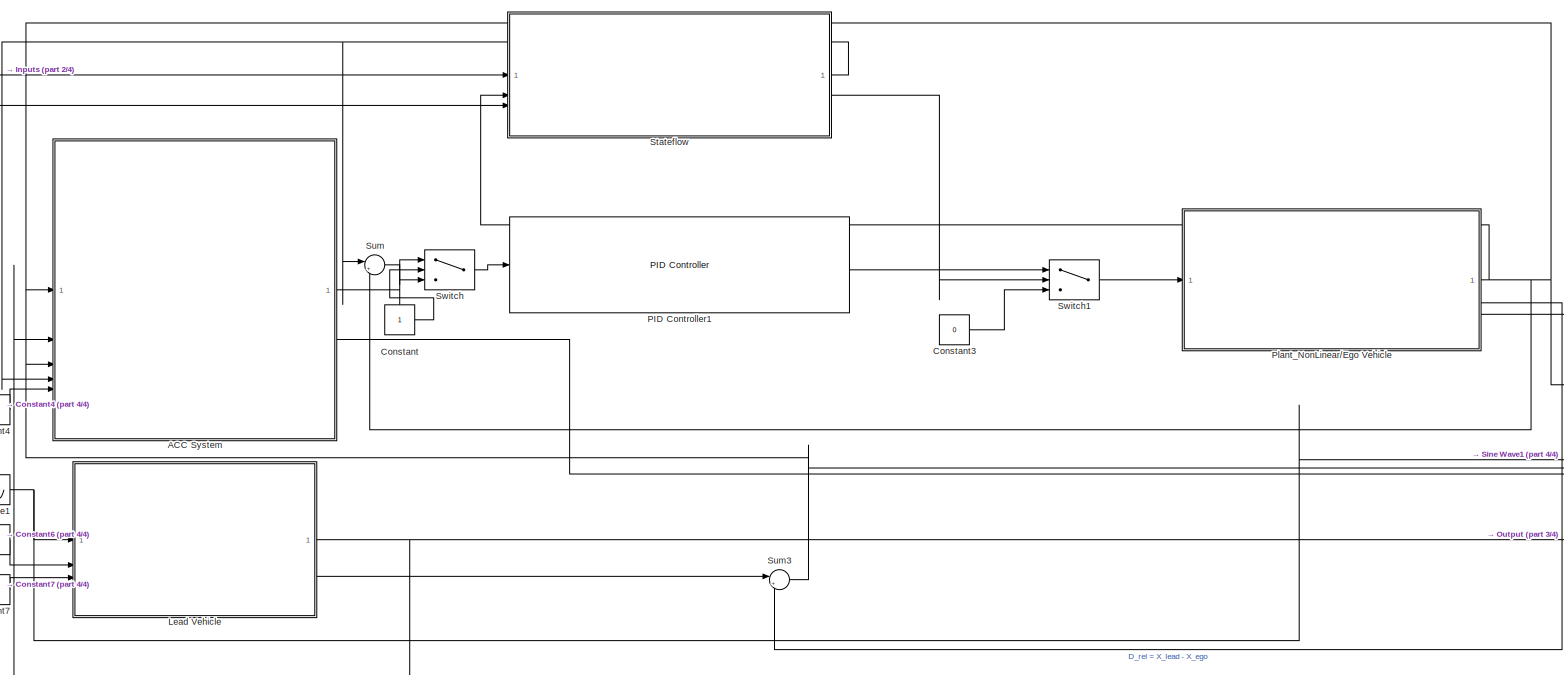
[diagram: root canvas - part 1/4, most of the canvas]
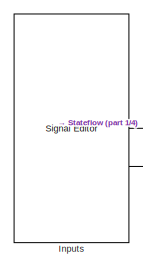
[diagram: root canvas - part 2/4, middle left region]
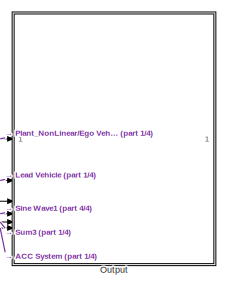
[diagram: root canvas - part 3/4, middle right region]
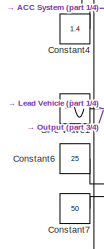
[diagram: root canvas - part 4/4, bottom left region]
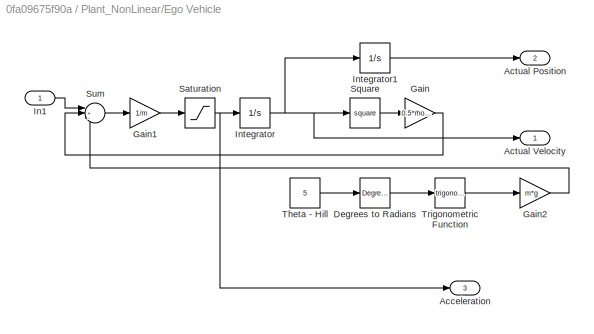
MODEL slx_0fa09675f90a
KIND model
CONFIG AbsTol = auto
CONFIG EnableMultiTasking = off
CONFIG FixedStep = 0.01
CONFIG MaxStep = auto
CONFIG MinStep = auto
CONFIG RelTol = 1e-3
CONFIG SampleTimeConstraint = Unconstrained
CONFIG SolverName = VariableStepAuto
CONFIG StartTime = 0.0
CONFIG StopTime = 80
WORKSPACE source: mxarray member
WORKSPACE A: Simulink.Parameter (value not decoded)
WORKSPACE Cd: Simulink.Parameter (value not decoded)
WORKSPACE b: Simulink.Parameter (value not decoded)
WORKSPACE g: Simulink.Parameter (value not decoded)
WORKSPACE m: Simulink.Parameter (value not decoded)
WORKSPACE rho: Simulink.Parameter (value not decoded)
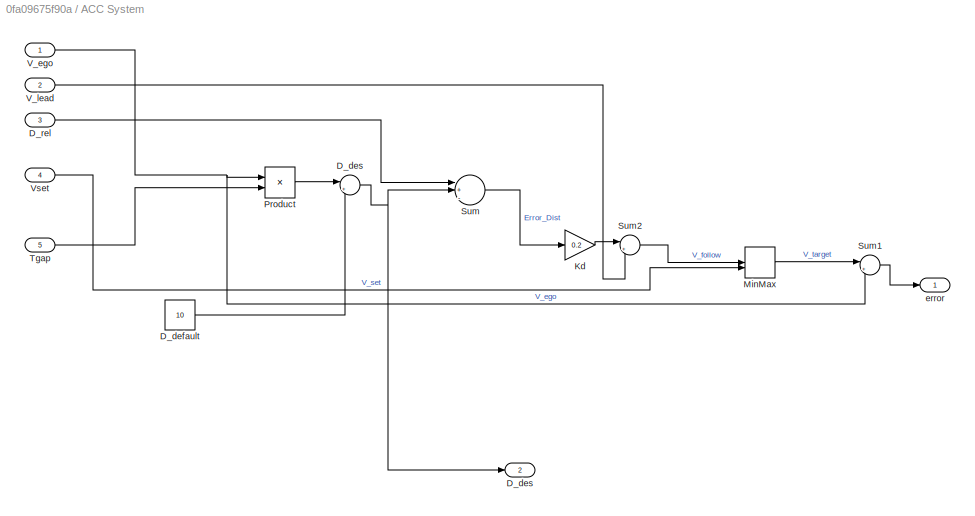
BLOCK [SubSystem] ACC System
BLOCK [Sum] ACC System/              D_des
  Inputs = |++
BLOCK [Constant] ACC System/D_default
  Value = 10
BLOCK [Outport] ACC System/D_des
  Port = 2
BLOCK [Inport] ACC System/D_rel
  Port = 3
BLOCK [Gain] ACC System/Kd
  Gain = 0.2
BLOCK [MinMax] ACC System/MinMax
  Inputs = 2
BLOCK [Product] ACC System/Product
BLOCK [Sum] ACC System/Sum
  Inputs = |+-+
BLOCK [Sum] ACC System/Sum1
  Inputs = |+-
BLOCK [Sum] ACC System/Sum2
  Inputs = |++
BLOCK [Inport] ACC System/Tgap
  Port = 5
BLOCK [Inport] ACC System/V_ego
BLOCK [Inport] ACC System/V_lead
  Port = 2
BLOCK [Inport] ACC System/Vset
  Port = 4
BLOCK [Outport] ACC System/error
BLOCK [Constant] Constant
BLOCK [Constant] Constant3
  SampleTime = -1
  Value = 0
BLOCK [Constant] Constant4
  Value = 1.4
BLOCK [Constant] Constant6
  Value = 25
BLOCK [Constant] Constant7
  Value = 50
BLOCK [Reference] Inputs  REF=SignalEditorBlockLib/Signal Editor
  LibrarySourceBlock = simulink/Sources/Signal Editor
  SourceBlock = SignalEditorBlockLib/Signal Editor
  SourceType = SignalEditor
  UserDataPersistent = on
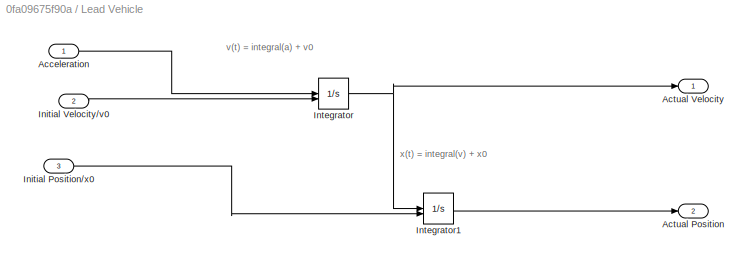
BLOCK [SubSystem] Lead Vehicle
BLOCK [Inport] Lead Vehicle/Acceleration
BLOCK [Outport] Lead Vehicle/Actual Position
  Port = 2
  Unit = m
BLOCK [Outport] Lead Vehicle/Actual Velocity
BLOCK [Inport] Lead Vehicle/Initial Position//x0
  Port = 3
BLOCK [Inport] Lead Vehicle/Initial Velocity//v0
  Port = 2
BLOCK [Integrator] Lead Vehicle/Integrator
  InitialConditionSource = external
BLOCK [Integrator] Lead Vehicle/Integrator1
  InitialConditionSource = external
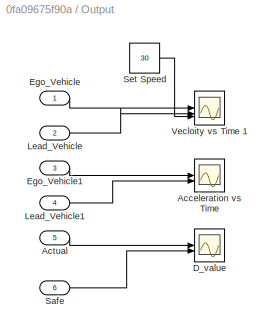
BLOCK [SubSystem] Output
BLOCK [Scope] Output/Acceleration vs Time 
  ActiveDisplayYMaximum = 2.6050483006799436
  ActiveDisplayYMinimum = -3.6227831445199938
  ContainerLayout = {"WindowBounds":[28,258,1295,805],"gridDimensions":{"w":1,"h":1},"tileCount":1,"tileCoverage":1,"columnWeights":1,"rowWeights":1,"tileOccupancy":{"children":[{"id":"/Output/Acceleration vs Time "},{"id":"/Output/D_value"},{"id":"/Output/Vecloity vs Time 1"}]}}  <repeated x3 — deduplicated; at blocks: Acceleration vs Time, D_value, Vecloity vs Time 1>
  DataLoggingVariableName = ScopeData6
  Floating = off
  GraphicalSettings = {"Style":{"BackgroundColor":[0.12941176470588237,0.12941176470588237,0.12941176470588237],"AxesColor":[0.07058823529411765,0.07058823529411765,0.07058823529411765],"LabelsColor":[0.8509803921568627,0.8509803921568627,0.8509803921568627],"PreserveColors":false,"Visible":[true,true],"LineStyle":["-","-"],"LineWidth":[1.5,1.5],"BarWidth":[0.9,0.9],"LineColor":["auto","auto"],"LineFaceAlpha":[1,1],"Li...<+2134ch>
  MultipleDisplayCache = [{"MaxYLimMag":3.6227831445199938,"MaxYLimReal":2.6050483006799436,"MinYLimMag":0,"MinYLimReal":-3.6227831445199938,"PlotAsMagnitudePhase":false,"ShowGrid":true,"ShowLegend":true,"Title":"%<SignalLabel>","YLabel":""}]
  NumInputPorts = 2
  ScopeFrameLocation = container
  ShowLegend = on
  Visible = on
  WasSavedAsWebScope = on
  WindowPosition = [36.000000,145.000000,1280.000000,768.000000,]
BLOCK [Inport] Output/Actual
  Port = 5
BLOCK [Scope] Output/D_value
  ActiveDisplayYMaximum = 68.271607799326915
  ActiveDisplayYMinimum = 33.317217570106237
  DataLoggingVariableName = ScopeData7
  Floating = off
  GraphicalSettings = {"Style":{"BackgroundColor":[0.12941176470588237,0.12941176470588237,0.12941176470588237],"AxesColor":[0.07058823529411765,0.07058823529411765,0.07058823529411765],"LabelsColor":[0.8509803921568627,0.8509803921568627,0.8509803921568627],"PreserveColors":false,"Visible":[true,true],"LineStyle":["-","-"],"LineWidth":[1.5,1.5],"BarWidth":[0.9,0.9],"LineColor":["auto","auto"],"LineFaceAlpha":[1,1],"Li...<+2098ch>
  MultipleDisplayCache = [{"MaxYLimMag":68.271607799326915,"MaxYLimReal":68.271607799326915,"MinYLimMag":33.317217570106237,"MinYLimReal":33.317217570106237,"PlotAsMagnitudePhase":false,"ShowGrid":true,"ShowLegend":true,"Title":"%<SignalLabel>","YLabel":""}]
  NumInputPorts = 2
  ScopeFrameLocation = container
  ShowLegend = on
  Visible = on
  WasSavedAsWebScope = on
  WindowPosition = [36.000000,145.000000,1280.000000,768.000000,]
BLOCK [Inport] Output/Ego_Vehicle
BLOCK [Inport] Output/Ego_Vehicle1
  Port = 3
BLOCK [Inport] Output/Lead_Vehicle
  Port = 2
BLOCK [Inport] Output/Lead_Vehicle1
  Port = 4
BLOCK [Inport] Output/Safe
  Port = 6
BLOCK [Constant] Output/Set Speed
  Value = 30
BLOCK [Scope] Output/Vecloity vs Time 1
  ActiveDisplayYMaximum = 32.052924514546675
  ActiveDisplayYMinimum = 17.718450127771249
  DataLoggingVariableName = ScopeData5
  Floating = off
  GraphicalSettings = {"Style":{"BackgroundColor":[0.12941176470588237,0.12941176470588237,0.12941176470588237],"AxesColor":[0.07058823529411765,0.07058823529411765,0.07058823529411765],"LabelsColor":[0.8509803921568627,0.8509803921568627,0.8509803921568627],"PreserveColors":false,"Visible":[true,true,true],"LineStyle":["-","-","--"],"LineWidth":[1.5,1.5,1.5],"BarWidth":[0.9,0.9,0.9],"LineColor":["auto","auto",[0,0,0]]...<+2231ch>
  MultipleDisplayCache = [{"MaxYLimMag":32.052924514546675,"MaxYLimReal":32.052924514546675,"MinYLimMag":17.718450127771249,"MinYLimReal":17.718450127771249,"PlotAsMagnitudePhase":false,"ShowGrid":true,"ShowLegend":true,"Title":"%<SignalLabel>","YLabel":""}]
  NumInputPorts = 3
  ScopeFrameLocation = container
  ShowLegend = on
  Visible = on
  WasSavedAsWebScope = on
  WindowPosition = [36.000000,145.000000,1280.000000,768.000000,]
BLOCK [Reference] PID Controller1  REF=slpidlib/PID Controller
  LibrarySourceBlock = simulink/Continuous/PID Controller
  SourceBlock = slpidlib/PID Controller
  SourceType = PID 1dof
BLOCK [SubSystem] Plant_NonLinear//Ego Vehicle
BLOCK [Outport] Plant_NonLinear//Ego Vehicle/Acceleration
  Port = 3
BLOCK [Outport] Plant_NonLinear//Ego Vehicle/Actual Position
  Port = 2
  Unit = m
BLOCK [Outport] Plant_NonLinear//Ego Vehicle/Actual Velocity
BLOCK [Reference] Plant_NonLinear//Ego Vehicle/Degrees to Radians  REF=simulink_extras/Transformations/Degrees to
Radians
  SourceBlock = simulink_extras/Transformations/Degrees to\nRadians
  SourceType = DegreesToRadians
BLOCK [Gain] Plant_NonLinear//Ego Vehicle/Gain
  Gain = 0.5*rho*Cd*A
BLOCK [Gain] Plant_NonLinear//Ego Vehicle/Gain1
  Gain = 1/m
BLOCK [Gain] Plant_NonLinear//Ego Vehicle/Gain2
  Gain = m*g
BLOCK [Inport] Plant_NonLinear//Ego Vehicle/In1
BLOCK [Integrator] Plant_NonLinear//Ego Vehicle/Integrator
  InitialCondition = 20
  LowerSaturationLimit = 0
BLOCK [Integrator] Plant_NonLinear//Ego Vehicle/Integrator1
  InitialCondition = 10
BLOCK [Saturate] Plant_NonLinear//Ego Vehicle/Saturation
  LowerLimit = -3
  UpperLimit = 2
BLOCK [Math] Plant_NonLinear//Ego Vehicle/Square
  Operator = square
BLOCK [Sum] Plant_NonLinear//Ego Vehicle/Sum
  Inputs = |+--
BLOCK [Constant] Plant_NonLinear//Ego Vehicle/Theta - Hill
  Value = 5
BLOCK [Trigonometry] Plant_NonLinear//Ego Vehicle/Trigonometric Function
BLOCK [Sin] Sine Wave1
  Amplitude = 0.45
  Frequency = 2*pi*0.027
  SampleTime = 0
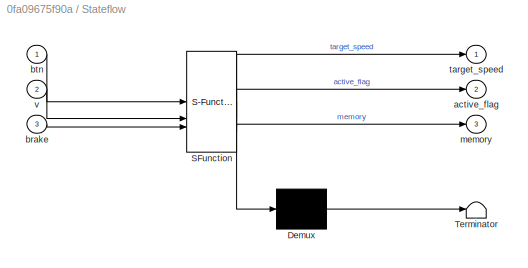
BLOCK [SubSystem] Stateflow
  ErrorFcn = Stateflow.Translate.translate
  PermitHierarchicalResolution = ExplicitOnly
  SFBlockType = Chart
  TreatAsAtomicUnit = on
BLOCK [Demux] Stateflow/ Demux 
  Outputs = 1
BLOCK [S-Function] Stateflow/ SFunction 
  EnableBusSupport = off
  FunctionName = sf_sfun
  PortCounts = [3 4]
  SFcnIsStateOwnerBlock = off
  SFunctionDeploymentMode = off
  Tag = Stateflow S-Function 1
BLOCK [Terminator] Stateflow/ Terminator 
BLOCK [Outport] Stateflow/active_flag
  Port = 2
BLOCK [Inport] Stateflow/brake
  Port = 3
BLOCK [Inport] Stateflow/btn
BLOCK [Outport] Stateflow/memory
  Port = 3
BLOCK [Outport] Stateflow/target_speed
BLOCK [Inport] Stateflow/v
  Port = 2
BLOCK [Sum] Sum
  Inputs = |+-
BLOCK [Sum] Sum3
  Inputs = |+-
BLOCK [Switch] Switch
  Criteria = u2 > Threshold
  InputSameDT = off
  SaturateOnIntegerOverflow = off
BLOCK [Switch] Switch1
  Criteria = u2 > Threshold
  InputSameDT = off
  SaturateOnIntegerOverflow = off
  Threshold = 0.5
ANNOTATION Lead Vehicle: x(t) = integral(v) + x0
ANNOTATION Lead Vehicle: v(t) = integral(a) + v0
NET ACC System/              D_des:1 -> ACC System/D_des:1, ACC System/Sum:2
LINE ACC System/D_default:1 -> ACC System/              D_des:2
LINE ACC System/D_rel:1 -> ACC System/Sum:1
LINE ACC System/Kd:1 -> ACC System/Sum2:1
LINE ACC System/MinMax:1 -> ACC System/Sum1:1
LINE ACC System/Product:1 -> ACC System/              D_des:1
LINE ACC System/Sum1:1 -> ACC System/error:1
LINE ACC System/Sum2:1 -> ACC System/MinMax:1
LINE ACC System/Sum:1 -> ACC System/Kd:1
LINE ACC System/Tgap:1 -> ACC System/Product:2
NET ACC System/V_ego:1 -> ACC System/Product:1, ACC System/Sum1:2
LINE ACC System/V_lead:1 -> ACC System/Sum2:2
LINE ACC System/Vset:1 -> ACC System/MinMax:2
LINE ACC System:1 -> Switch:1
LINE ACC System:2 -> Output:6
LINE Constant3:1 -> Switch1:3
LINE Constant4:1 -> ACC System:5
LINE Constant6:1 -> Lead Vehicle:2
LINE Constant7:1 -> Lead Vehicle:3
LINE Constant:1 -> Switch:2
LINE Inputs:1 -> Stateflow:1
LINE Inputs:2 -> Stateflow:3
LINE Lead Vehicle/Acceleration:1 -> Lead Vehicle/Integrator:1
LINE Lead Vehicle/Initial Position//x0:1 -> Lead Vehicle/Integrator1:2
LINE Lead Vehicle/Initial Velocity//v0:1 -> Lead Vehicle/Integrator:2
LINE Lead Vehicle/Integrator1:1 -> Lead Vehicle/Actual Position:1
NET Lead Vehicle/Integrator:1 -> Lead Vehicle/Actual Velocity:1, Lead Vehicle/Integrator1:1
NET Lead Vehicle:1 -> ACC System:2, Output:2
LINE Lead Vehicle:2 -> Sum3:1
LINE Output/Actual:1 -> Output/D_value:1
LINE Output/Ego_Vehicle1:1 -> Output/Acceleration vs Time :1
LINE Output/Ego_Vehicle:1 -> Output/Vecloity vs Time 1:1
LINE Output/Lead_Vehicle1:1 -> Output/Acceleration vs Time :2
LINE Output/Lead_Vehicle:1 -> Output/Vecloity vs Time 1:2
LINE Output/Safe:1 -> Output/D_value:2
LINE Output/Set Speed:1 -> Output/Vecloity vs Time 1:3
LINE PID Controller1:1 -> Switch1:1
LINE Plant_NonLinear//Ego Vehicle/Degrees to Radians:1 -> Plant_NonLinear//Ego Vehicle/Trigonometric Function:1
LINE Plant_NonLinear//Ego Vehicle/Gain1:1 -> Plant_NonLinear//Ego Vehicle/Saturation:1
LINE Plant_NonLinear//Ego Vehicle/Gain2:1 -> Plant_NonLinear//Ego Vehicle/Sum:3
LINE Plant_NonLinear//Ego Vehicle/Gain:1 -> Plant_NonLinear//Ego Vehicle/Sum:2
LINE Plant_NonLinear//Ego Vehicle/In1:1 -> Plant_NonLinear//Ego Vehicle/Sum:1
LINE Plant_NonLinear//Ego Vehicle/Integrator1:1 -> Plant_NonLinear//Ego Vehicle/Actual Position:1
NET Plant_NonLinear//Ego Vehicle/Integrator:1 -> Plant_NonLinear//Ego Vehicle/Actual Velocity:1, Plant_NonLinear//Ego Vehicle/Integrator1:1, Plant_NonLinear//Ego Vehicle/Square:1
NET Plant_NonLinear//Ego Vehicle/Saturation:1 -> Plant_NonLinear//Ego Vehicle/Acceleration:1, Plant_NonLinear//Ego Vehicle/Integrator:1
LINE Plant_NonLinear//Ego Vehicle/Square:1 -> Plant_NonLinear//Ego Vehicle/Gain:1
LINE Plant_NonLinear//Ego Vehicle/Sum:1 -> Plant_NonLinear//Ego Vehicle/Gain1:1
LINE Plant_NonLinear//Ego Vehicle/Theta - Hill:1 -> Plant_NonLinear//Ego Vehicle/Degrees to Radians:1
LINE Plant_NonLinear//Ego Vehicle/Trigonometric Function:1 -> Plant_NonLinear//Ego Vehicle/Gain2:1
NET Plant_NonLinear//Ego Vehicle:1 -> ACC System:1, Output:1, Stateflow:2, Sum:2
LINE Plant_NonLinear//Ego Vehicle:2 -> Sum3:2
LINE Plant_NonLinear//Ego Vehicle:3 -> Output:3
NET Sine Wave1:1 -> Lead Vehicle:1, Output:4
NET Stateflow:1 -> ACC System:4, Sum:1
LINE Stateflow:2 -> Switch1:2
NET Sum3:1 -> ACC System:3, Output:5
LINE Sum:1 -> Switch:3
LINE Switch1:1 -> Plant_NonLinear//Ego Vehicle:1
LINE Switch:1 -> PID Controller1:1
note: NET lines group one-source signal fan-out (src -> all destinations, sorted); 1:1 wires keep LINE
CHART Stateflow states=6 transitions=9
  STATE_LABEL 'ON_MODE'
  STATE_LABEL '                SET\nen:\nstored_speed = 50;\ntarget_speed = 50;\nmemory = v;\nactive_flag = 1;'
  STATE_LABEL 'Accel\ndu:\ntarget_speed = target_speed + 0.05;\nactive_flag = 1;'
  STATE_LABEL 'Resume\nen:\ntarget_speed = stored_speed;\nactive_flag = 1;'
  STATE_LABEL 'Deccel\ndu:\ntarget_speed = target_speed - 0.05;\nactive_flag = 1;'
  STATE_LABEL '[btn == 0]'
  STATE_LABEL '[btn == 2]'
  STATE_LABEL '[btn == 0]'
  STATE_LABEL '[btn == 3]'
  STATE_LABEL '[btn == 0]'
  STATE_LABEL '                SET\nen:\nstored_speed = 50;\ntarget_speed = 50;\nmemory = v;\nactive_flag = 1;'
  STATE_LABEL 'Accel\ndu:\ntarget_speed = target_speed + 0.05;\nactive_flag = 1;'
  STATE_LABEL 'Resume\nen:\ntarget_speed = stored_speed;\nactive_flag = 1;'
  STATE_LABEL 'Deccel\ndu:\ntarget_speed = target_speed - 0.05;\nactive_flag = 1;'
  STATE_LABEL '                  OFF\nen:\ntarget_speed = 0;\nactive_flag = 0;'
CHART  states=0 transitions=0
